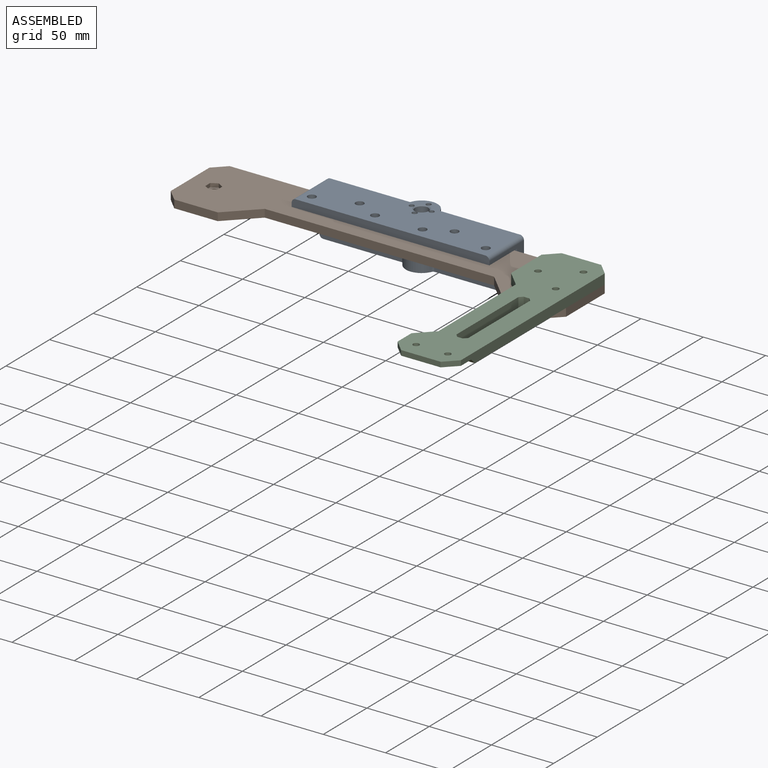
[diagram: assembled view]
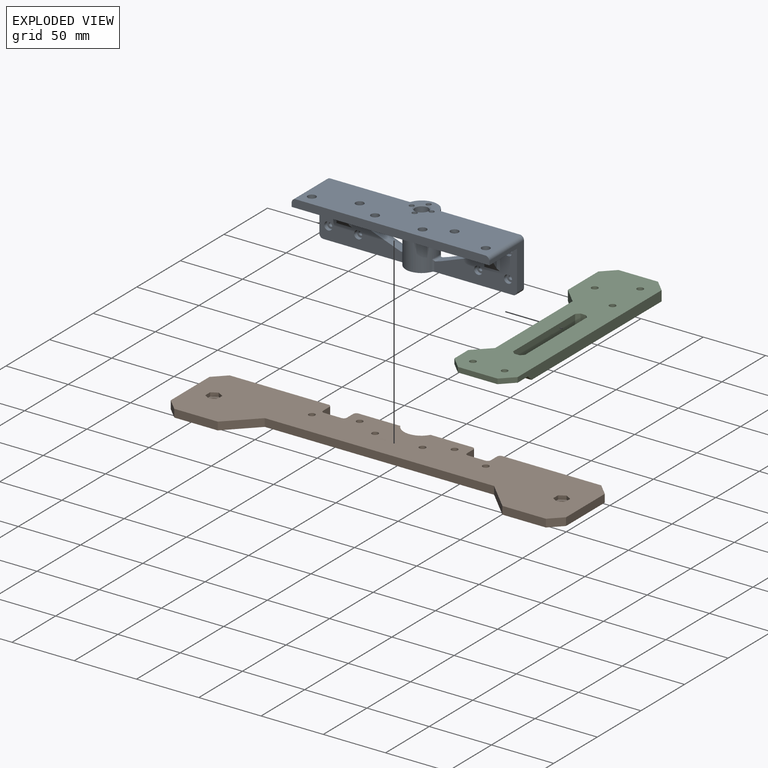
[diagram: exploded view]
GUIDED TOUR — MATED ASSEMBLY (Onshape document 57eddd5dabc414ae9077054c, AutoMate assembly 57eddd5dabc414ae9077054c_cc69fc8df70226107873c7df_3a437bafbf98601122c92799_default)

This assembly has 3 components, labeled P0..P2 below (a component is one placed occurrence of a part; the same part can appear more than once), held together by 5 mates. A mate is a constraint between two components; its type names the relative motion it leaves free:
  CYLINDRICAL — leaves both rotation about and translation along the listed axis free,
  PARALLEL — keeps the two listed directions parallel,
  PLANAR — leaves sliding in the plane through the listed point (normal = the listed direction) and rotation about that normal free.
Axis/direction vectors are unit vectors and 'through' points are millimeter coordinates, both in the assembly's world frame.

MATES
  1. PLANAR "Planar 1": P0 <-> P1, direction (0.000, 0.000, -1.000) through (2.60, -173.63, 19.54) mm
  2. CYLINDRICAL "Cylindrical 1": P1 <-> P0, axis (0.000, 0.000, -1.000) through (-69.01, -178.96, 13.19) mm
  3. PARALLEL "Parallel 1": P2 <-> P1, direction (1.000, 0.000, 0.000) through (159.59, -248.68, 23.69) mm
  4. PLANAR "Planar 2": P2 <-> P1, direction (0.000, 0.000, -1.000) through (121.49, -217.06, 19.54) mm
  5. CYLINDRICAL "Cylindrical 2": P2 <-> P1, axis (0.000, 0.000, -1.000) through (121.49, -191.66, 23.60) mm

ASSEMBLY ORDER
  1. P0 — the base component [order verified]
  2. P1 [order verified]
  3. P2 [order verified]
Order-tag legend:
  [order verified] — this step's position reverses a verified removal order: the component was checked to insert without passing through the ones already placed.

Of the 3 components, 1 carries the full construction recipe — the FeatureScript program that regenerates the part's solid from scratch; the rest are supplied as boundary geometry only.
Each toured component is shown spotlighted twice — in the assembled view, then in the exploded view, where a leader line traces a displaced component back to its assembled socket (saturated green if recipe-attached, orange if geometry-only; every other component desaturated gray) — followed by its recipe or geometry summary and the mates that hold it.
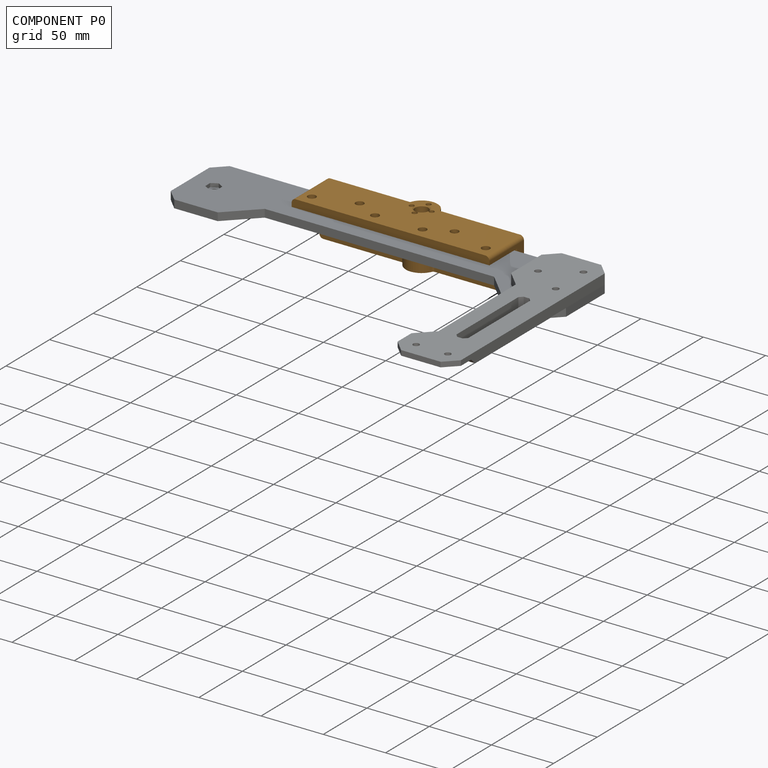
[diagram: component P0 — assembled]
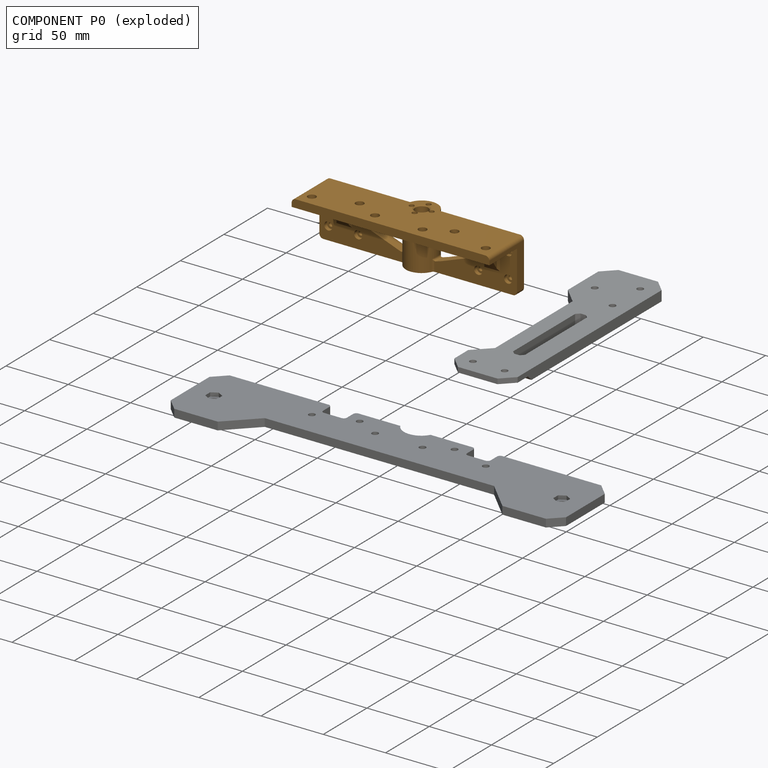
[diagram: component P0 — exploded]
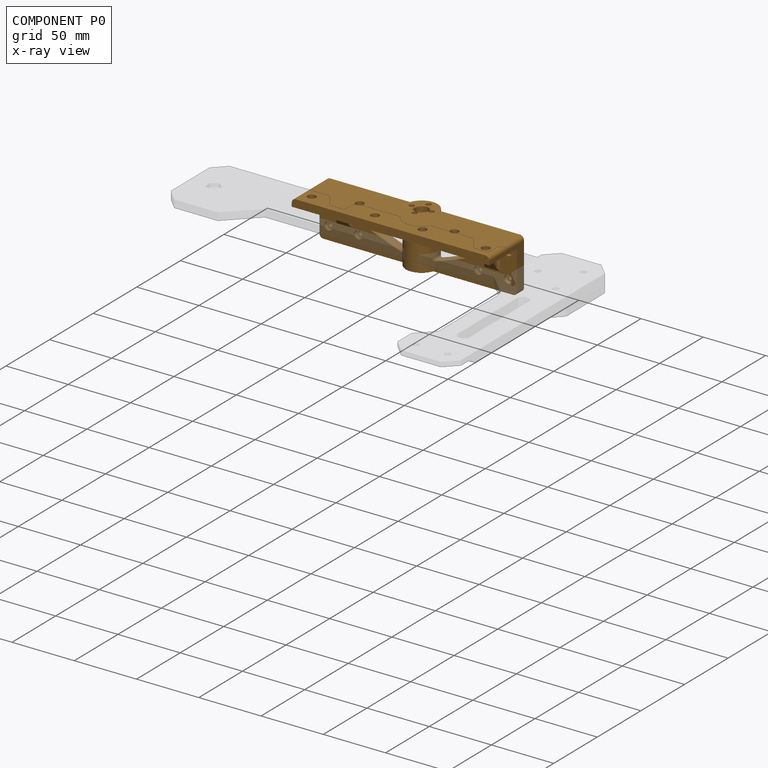
[diagram: component P0 — x-ray view]
COMPONENT P0 — geometry summary (no construction recipe available for this part):
  bounding box: 158.8 x 48.5 x 41.0 mm
  B-rep topology: 1 solid, 103 faces, 580 edges
  volume: 82687 mm^3 (26% of its bounding box)
  symmetry: mirror-symmetric across its x mid-plane
Held by: PLANAR mate "Planar 1" to P1; CYLINDRICAL mate "Cylindrical 1" to P1.
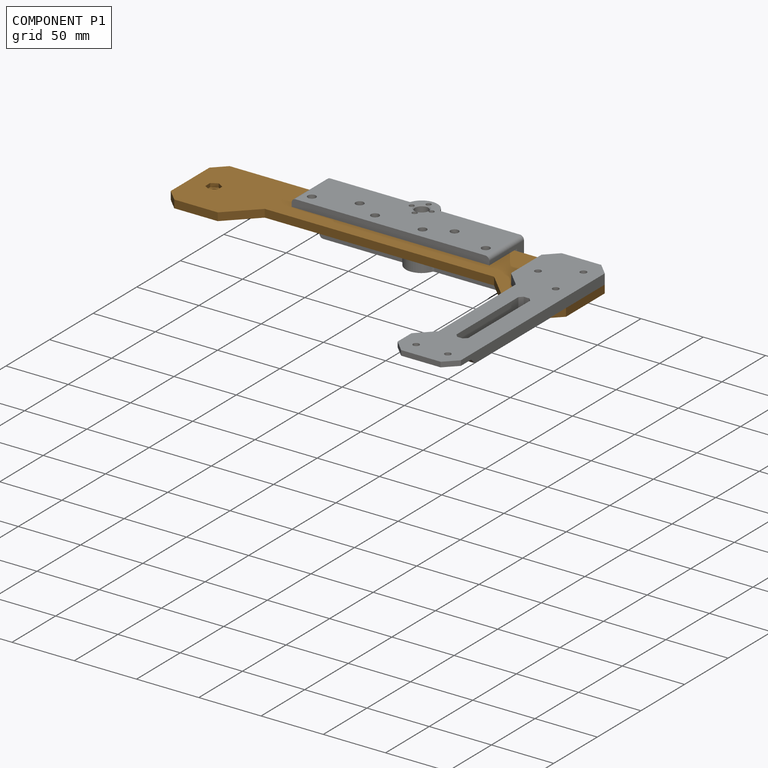
[diagram: component P1 — assembled]
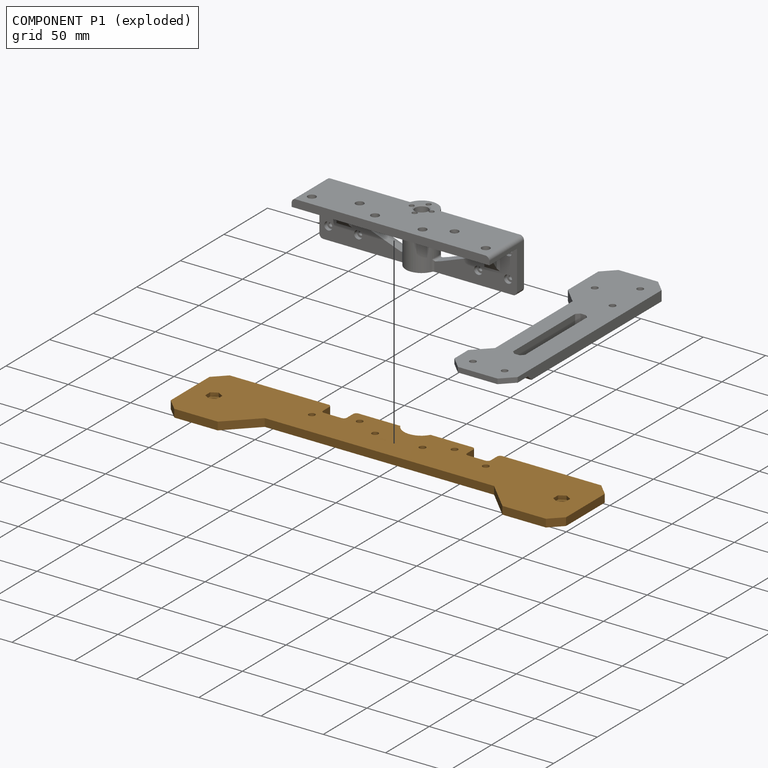
[diagram: component P1 — exploded]
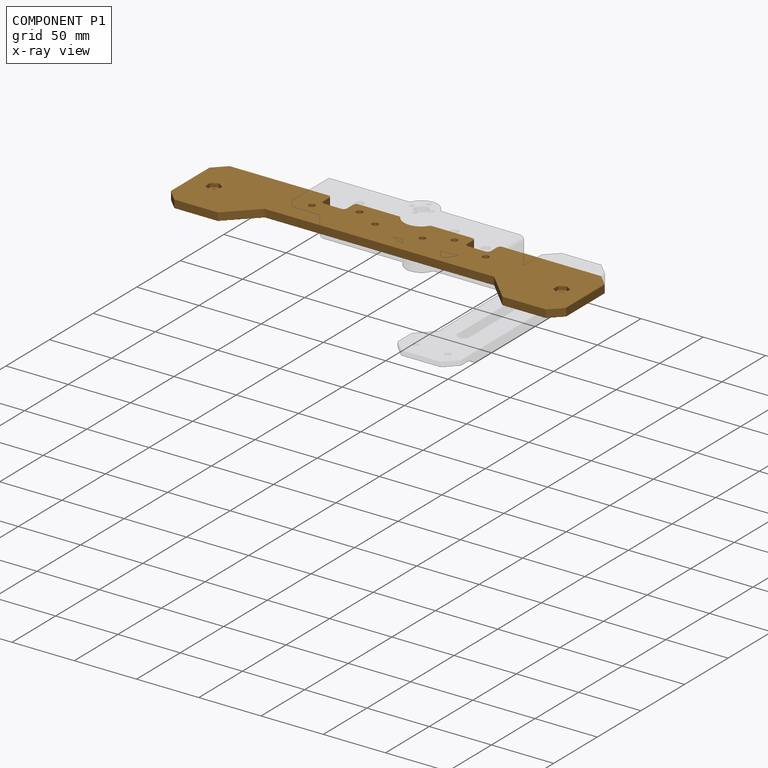
[diagram: component P1 — x-ray view]
COMPONENT P1 — geometry summary (no construction recipe available for this part):
  bounding box: 317.5 x 63.5 x 12.7 mm
  B-rep topology: 1 solid, 76 faces, 372 edges
  volume: 94123 mm^3 (37% of its bounding box)
  symmetry: mirror-symmetric across its x mid-plane
Held by: PLANAR mate "Planar 1" to P0; CYLINDRICAL mate "Cylindrical 1" to P0; PARALLEL mate "Parallel 1" to P2; PLANAR mate "Planar 2" to P2; CYLINDRICAL mate "Cylindrical 2" to P2.
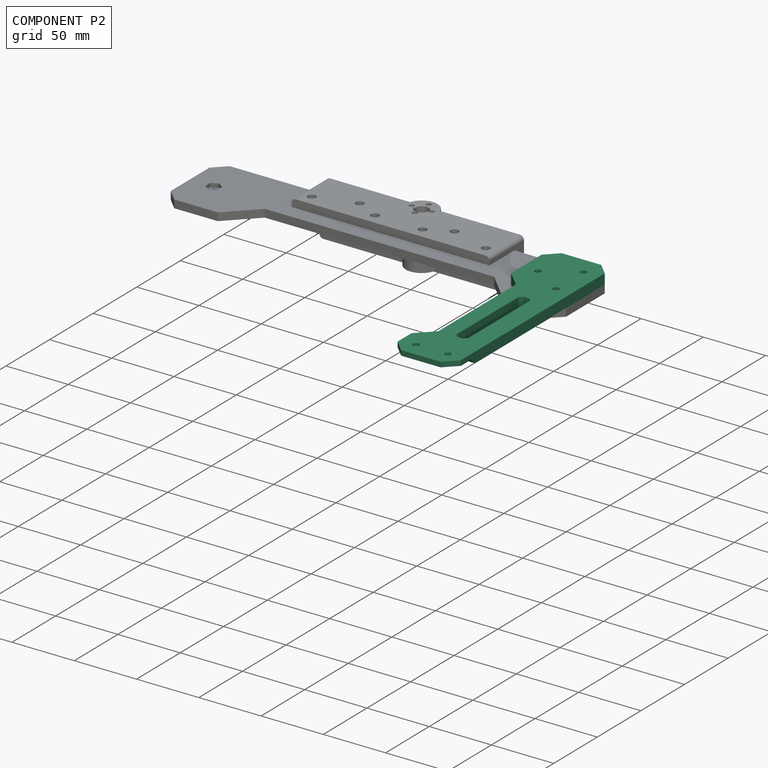
[diagram: component P2 — assembled]
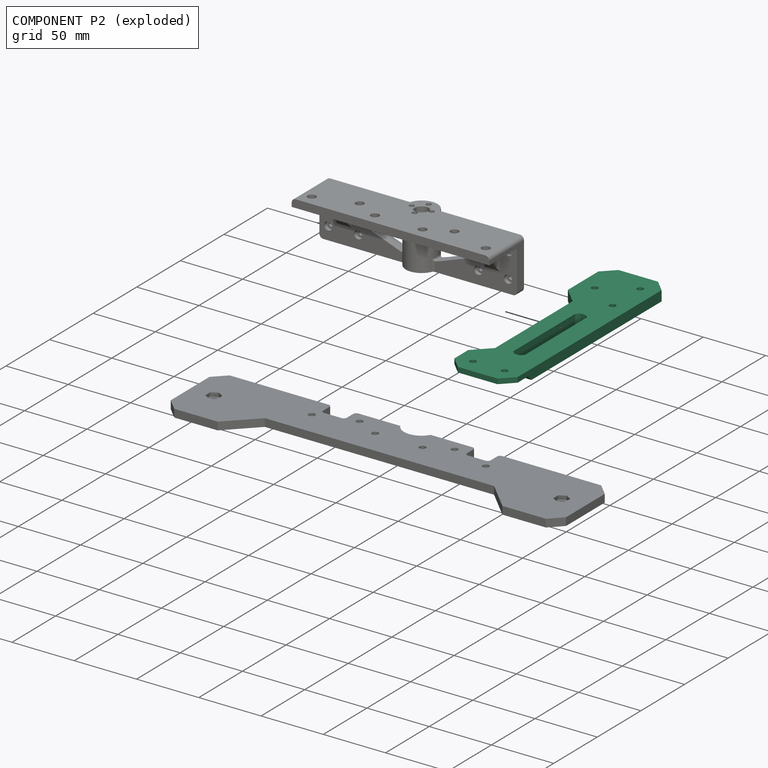
[diagram: component P2 — exploded]
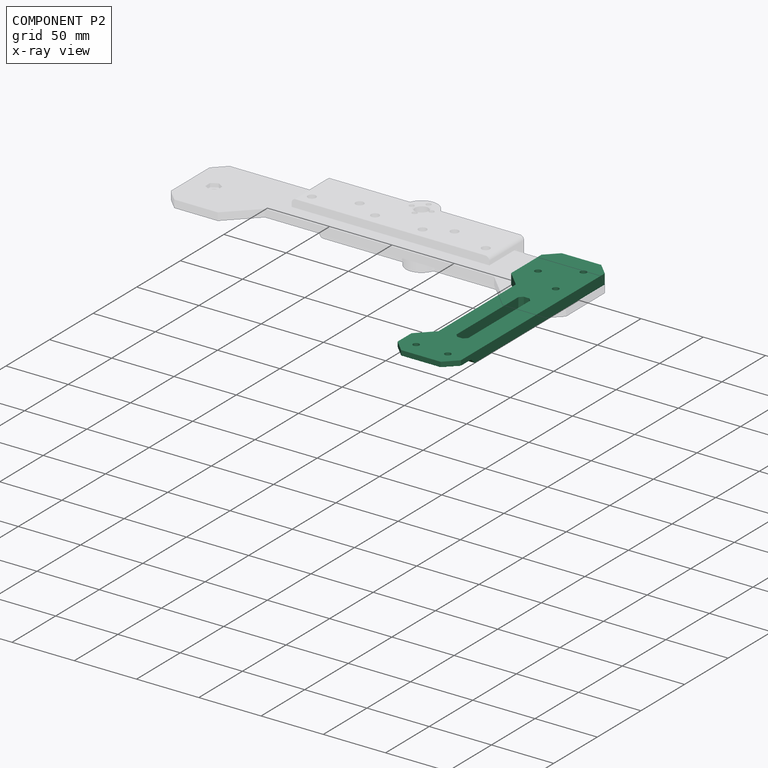
[diagram: component P2 — x-ray view]
COMPONENT P2 — recipe-attached (CADFS 00773303, mesh-verified: the recipe's output STEP matches this component's geometry to below the mesh-comparison resolution (tessellation chordal tolerance ~0.287 mm)).
Held by: PARALLEL mate "Parallel 1" to P1; PLANAR mate "Planar 2" to P1; CYLINDRICAL mate "Cylindrical 2" to P1.
Construction recipe (FeatureScript — the CAD program that rebuilds this solid; sketch coordinates are in the units given by the * unit suffixes, e.g. mm):

FeatureScript 1511;
import(path : "onshape/std/geometry.fs", version : "1511.0");
import(path : "onshape/std/common.fs", version : "1511.0");
const mm = millimeter;
const VERTEX = EntityType.VERTEX;
const EDGE = EntityType.EDGE;
const FACE = EntityType.FACE;
const BODY = EntityType.BODY;
function v(x, y){return vector(x, y);}
function OD(order){return orderDisambiguation(order);}
function OSD(set){return originalSetDisambiguation(set);}
function TD(topology){return topologyDisambiguation(topology);}
function TDD(query){return trueDependencyDisambiguation(query);}
function sQuery(a, b, c) {return sketchEntityQuery(a, b, c);}

annotation { "Feature Type Name" : "Feature", "Feature Type Description" : "" }
export const myFeature = defineFeature(function(context is Context, id is Id, definition is map)
    precondition{}
    {
        {
            var Q0;
            Q0=qCreatedBy(makeId("Top.planeOp"),FACE);
            var sketch = newSketch(context, id + "F0", { "sketchPlane" : qUnion([Q0])});
            skLineSegment(sketch, "E0.bottom", {"start": v(-92.08, 25.4) * mm, "end": v(92.08, 25.4) * mm});
            skLineSegment(sketch, "E0.top", {"start": v(-92.08, -25.4) * mm, "end": v(92.08, -25.4) * mm});
            skLineSegment(sketch, "E0.left", {"start": v(-92.08, 25.4) * mm, "end": v(-92.08, -25.4) * mm});
            skLineSegment(sketch, "E0.right", {"start": v(92.08, 25.4) * mm, "end": v(92.08, -25.4) * mm});
            skPoint(sketch, "E0.middle", {"position": v(0, 0) * mm});
            skSolve(sketch);
        }
        {
            var Q0;
            Q0=makeQuery(id+"F0.imprint","IMPRINT",FACE,{"disambiguationData":[TD([[makeQuery(id+"F0.imprint","IMPRINT",EDGE,{"derivedFrom":sQuery(id+"F0.wireOp",EDGE,"E0.bottom")}),-1.0]])]});
            extrude(context, id + "F1", {"entities" : qUnion([Q0]), "depth" : 8.13 * mm, "offsetDistance" : 25.4 * mm});
        }
        {
            var Q0;
            Q0=makeQuery(id+"F1.opExtrude","CAP_FACE",FACE,{"disambiguationData":[OSD([sQuery(id+"F0.wireOp",EDGE,"E0.bottom"),sQuery(id+"F0.wireOp",EDGE,"E0.top"),sQuery(id+"F0.wireOp",EDGE,"E0.left"),sQuery(id+"F0.wireOp",EDGE,"E0.right")])],"isStart":false});
            var sketch = newSketch(context, id + "F2", { "sketchPlane" : qUnion([Q0])});
            skPoint(sketch, "E1", {"position": v(-76.2, -12.7) * mm});
            skPoint(sketch, "E2", {"position": v(-44.45, -12.7) * mm});
            skPoint(sketch, "E3", {"position": v(-60.33, 12.7) * mm});
            skSolve(sketch);
        }
        {
            var Q0;
            Q0=sQuery(id+"F2.wireOp",VERTEX,"E3");
            var Q1;
            Q1=sQuery(id+"F2.wireOp",VERTEX,"E1");
            var Q2;
            Q2=sQuery(id+"F2.wireOp",VERTEX,"E2");
            var Q3;
            Q3=makeQuery(id+"F1.opExtrude","SWEPT_BODY",BODY,{"disambiguationData":[OSD([sQuery(id+"F0.wireOp",EDGE,"E0.bottom"),sQuery(id+"F0.wireOp",EDGE,"E0.top"),sQuery(id+"F0.wireOp",EDGE,"E0.left"),sQuery(id+"F0.wireOp",EDGE,"E0.right")])]});
            hole(context, id + "F3", {"style" : HoleStyle.SIMPLE, "endStyle" : HoleEndStyle.THROUGH, "standardTappedOrClearance" : lookupTablePath({ "standard" : "ANSI", "fit" : "Normal (ASME)", "size" : "#10", "type" : "Clearance" }), "standardBlindInLast" : lookupTablePath({ "fit" : "Free", "standard" : "ANSI", "size" : "#10", "type" : "Clearance" }), "holeDiameter" : 5.1 * mm, "majorDiameter" : 6.35 * mm, "isTappedThrough" : true, "tappedDepth" : 12.7 * mm, "tapClearance" : 3, "locations" : qUnion([Q0, Q1, Q2]), "scope" : qUnion([Q3])});
        }
        {
            var Q0;
            Q0=qCreatedBy(makeId("Right.planeOp"),FACE);
            cPlane(context, id + "F4", {"entities" : qUnion([Q0]), "cplaneType" : CPlaneType.OFFSET, "offset" : 60.32 * mm, "oppositeDirection" : true, "width" : 152.4 * mm, "height" : 152.4 * mm});
        }
        {
            var Q0;
            Q0=makeQuery(id+"F1.opExtrude","CAP_FACE",FACE,{"disambiguationData":[OSD([sQuery(id+"F0.wireOp",EDGE,"E0.bottom"),sQuery(id+"F0.wireOp",EDGE,"E0.top"),sQuery(id+"F0.wireOp",EDGE,"E0.left"),sQuery(id+"F0.wireOp",EDGE,"E0.right")])],"isStart":false});
            var sketch = newSketch(context, id + "F5", { "sketchPlane" : qUnion([Q0])});
            skPoint(sketch, "E4", {"position": v(79.38, 12.7) * mm});
            skPoint(sketch, "E5", {"position": v(79.38, -12.7) * mm});
            skSolve(sketch);
        }
        {
            var Q0;
            Q0=sQuery(id+"F5.wireOp",VERTEX,"E4");
            var Q1;
            Q1=sQuery(id+"F5.wireOp",VERTEX,"E5");
            var Q2;
            Q2=makeQuery(id+"F1.opExtrude","SWEPT_BODY",BODY,{"disambiguationData":[OSD([sQuery(id+"F0.wireOp",EDGE,"E0.bottom"),sQuery(id+"F0.wireOp",EDGE,"E0.top"),sQuery(id+"F0.wireOp",EDGE,"E0.left"),sQuery(id+"F0.wireOp",EDGE,"E0.right")])]});
            hole(context, id + "F6", {"style" : HoleStyle.SIMPLE, "endStyle" : HoleEndStyle.THROUGH, "standardTappedOrClearance" : lookupTablePath({ "standard" : "ANSI", "fit" : "Close", "size" : "#10", "type" : "Clearance" }), "standardBlindInLast" : lookupTablePath({ "fit" : "Close", "standard" : "ANSI", "size" : "#10", "type" : "Clearance" }), "holeDiameter" : 4.98 * mm, "majorDiameter" : 6.35 * mm, "isTappedThrough" : true, "tappedDepth" : 12.7 * mm, "tapClearance" : 3, "locations" : qUnion([Q0, Q1]), "scope" : qUnion([Q2])});
        }
        {
            var Q0;
            Q0=makeQuery(id+"F1.opExtrude","CAP_FACE",FACE,{"disambiguationData":[OSD([sQuery(id+"F0.wireOp",EDGE,"E0.bottom"),sQuery(id+"F0.wireOp",EDGE,"E0.top"),sQuery(id+"F0.wireOp",EDGE,"E0.left"),sQuery(id+"F0.wireOp",EDGE,"E0.right")])],"isStart":false});
            var sketch = newSketch(context, id + "F7", { "sketchPlane" : qUnion([Q0])});
            skLineSegment(sketch, "E6", {"start": v(-47.63, 25.4) * mm, "end": v(-34.92, 12.7) * mm});
            skLineSegment(sketch, "E7", {"start": v(-34.92, 12.7) * mm, "end": v(53.98, 12.7) * mm});
            skLineSegment(sketch, "E8", {"start": v(53.98, 12.7) * mm, "end": v(66.67, 25.4) * mm});
            skLineSegment(sketch, "E9", {"start": v(66.67, 25.4) * mm, "end": v(-47.63, 25.4) * mm});
            skLineSegment(sketch, "E10.bottom", {"start": v(-22.23, 0) * mm, "end": v(53.98, 0) * mm});
            skLineSegment(sketch, "E10.top", {"start": v(-22.23, -9.53) * mm, "end": v(53.98, -9.53) * mm});
            skLineSegment(sketch, "E10.left", {"start": v(-22.23, 0) * mm, "end": v(-22.23, -9.53) * mm});
            skLineSegment(sketch, "E10.right", {"start": v(53.98, 0) * mm, "end": v(53.98, -9.53) * mm});
            skPoint(sketch, "E10.middle", {"position": v(15.88, -4.76) * mm});
            skSolve(sketch);
        }
        {
            var Q0;
            Q0=makeQuery(id+"F7.imprint","IMPRINT",FACE,{"disambiguationData":[TD([[makeQuery(id+"F7.imprint","IMPRINT",EDGE,{"derivedFrom":sQuery(id+"F7.wireOp",EDGE,"E6")}),1.0]])]});
            var Q1;
            Q1=makeQuery(id+"F7.imprint","IMPRINT",FACE,{"disambiguationData":[TD([[makeQuery(id+"F7.imprint","IMPRINT",EDGE,{"derivedFrom":sQuery(id+"F7.wireOp",EDGE,"E10.bottom")}),-1.0]])]});
            extrude(context, id + "F8", {"entities" : qUnion([Q0, Q1]), "operationType" : NewBodyOperationType.REMOVE, "endBound" : BoundingType.THROUGH_ALL, "oppositeDirection" : true, "depth" : 25.4 * mm, "offsetDistance" : 25.4 * mm});
        }
        {
            var Q0;
            Q0=makeQuery(id+"F1.opExtrude","SWEPT_EDGE",EDGE,{"disambiguationData":[OSD([sQuery(id+"F0.wireOp",EDGE,"E0.top"),sQuery(id+"F0.wireOp",EDGE,"E0.left")])]});
            var Q1;
            Q1=makeQuery(id+"F1.opExtrude","SWEPT_EDGE",EDGE,{"disambiguationData":[OSD([sQuery(id+"F0.wireOp",EDGE,"E0.bottom"),sQuery(id+"F0.wireOp",EDGE,"E0.left")])]});
            var Q2;
            Q2=makeQuery(id+"F1.opExtrude","SWEPT_EDGE",EDGE,{"disambiguationData":[OSD([sQuery(id+"F0.wireOp",EDGE,"E0.top"),sQuery(id+"F0.wireOp",EDGE,"E0.right")])]});
            var Q3;
            Q3=makeQuery(id+"F1.opExtrude","SWEPT_EDGE",EDGE,{"disambiguationData":[OSD([sQuery(id+"F0.wireOp",EDGE,"E0.bottom"),sQuery(id+"F0.wireOp",EDGE,"E0.right")])]});
            chamfer(context, id + "F9", {"entities" : qUnion([Q0, Q1, Q2, Q3]), "width" : 9.52 * mm, "tangentPropagation" : true});
        }
        {
            var Q0;
            Q0=makeQuery(id+"F8.boolean.opBoolean","COPY",EDGE,{"derivedFrom":makeQuery(id+"F8.opExtrude","SWEPT_EDGE",EDGE,{"disambiguationData":[OSD([sQuery(id+"F7.wireOp",EDGE,"E10.bottom"),sQuery(id+"F7.wireOp",EDGE,"E10.left")])]})});
            var Q1;
            Q1=makeQuery(id+"F8.boolean.opBoolean","COPY",EDGE,{"derivedFrom":makeQuery(id+"F8.opExtrude","SWEPT_EDGE",EDGE,{"disambiguationData":[OSD([sQuery(id+"F7.wireOp",EDGE,"E10.top"),sQuery(id+"F7.wireOp",EDGE,"E10.left")])]})});
            var Q2;
            Q2=makeQuery(id+"F8.boolean.opBoolean","COPY",EDGE,{"derivedFrom":makeQuery(id+"F8.opExtrude","SWEPT_EDGE",EDGE,{"disambiguationData":[OSD([sQuery(id+"F7.wireOp",EDGE,"E10.bottom"),sQuery(id+"F7.wireOp",EDGE,"E10.right")])]})});
            var Q3;
            Q3=makeQuery(id+"F8.boolean.opBoolean","COPY",EDGE,{"derivedFrom":makeQuery(id+"F8.opExtrude","SWEPT_EDGE",EDGE,{"disambiguationData":[OSD([sQuery(id+"F7.wireOp",EDGE,"E10.top"),sQuery(id+"F7.wireOp",EDGE,"E10.right")])]})});
            chamfer(context, id + "F10", {"entities" : qUnion([Q0, Q1, Q2, Q3]), "width" : 2.54 * mm, "tangentPropagation" : true});
        }
        {
            var Q0;
            Q0=makeQuery(id+"F1.opExtrude","CAP_FACE",FACE,{"disambiguationData":[OSD([sQuery(id+"F0.wireOp",EDGE,"E0.bottom"),sQuery(id+"F0.wireOp",EDGE,"E0.top"),sQuery(id+"F0.wireOp",EDGE,"E0.left"),sQuery(id+"F0.wireOp",EDGE,"E0.right")])],"isStart":false});
            var sketch = newSketch(context, id + "F11", { "sketchPlane" : qUnion([Q0])});
            skLineSegment(sketch, "E11", {"start": v(66.67, 25.4) * mm, "end": v(66.67, -25.4) * mm});
            skLineSegment(sketch, "E12", {"start": v(66.67, -25.4) * mm, "end": v(82.55, -25.4) * mm});
            skLineSegment(sketch, "E13", {"start": v(82.55, -25.4) * mm, "end": v(92.08, -15.88) * mm});
            skLineSegment(sketch, "E14", {"start": v(92.08, -15.88) * mm, "end": v(92.08, 15.88) * mm});
            skLineSegment(sketch, "E15", {"start": v(92.08, 15.88) * mm, "end": v(82.55, 25.4) * mm});
            skLineSegment(sketch, "E16", {"start": v(82.55, 25.4) * mm, "end": v(66.67, 25.4) * mm});
            skSolve(sketch);
        }
        {
            var Q0;
            Q0=makeQuery(id+"F11.imprint","IMPRINT",FACE,{"disambiguationData":[TD([[makeQuery(id+"F11.imprint","IMPRINT",EDGE,{"derivedFrom":sQuery(id+"F11.wireOp",EDGE,"E11")}),1.0]])]});
            extrude(context, id + "F12", {"entities" : qUnion([Q0]), "operationType" : NewBodyOperationType.REMOVE, "oppositeDirection" : true, "depth" : 4.06 * mm, "offsetDistance" : 25.4 * mm});
        }
        {
            var Q0;
            Q0=makeQuery(id+"F12.boolean.opBoolean","COPY",EDGE,{"derivedFrom":makeQuery(id+"F12.opExtrude","CAP_EDGE",EDGE,{"disambiguationData":[OSD([sQuery(id+"F11.wireOp",EDGE,"E11")])],"isStart":false})});
            chamfer(context, id + "F13", {"entities" : qUnion([Q0]), "width" : 4.06 * mm, "tangentPropagation" : true});
        }
        {
            var Q0;
            Q0=makeQuery(id+"F1.opExtrude","SWEPT_FACE",FACE,{"disambiguationData":[OSD([sQuery(id+"F0.wireOp",EDGE,"E0.right")])]});
            cPlane(context, id + "F14", {"entities" : qUnion([Q0]), "cplaneType" : CPlaneType.OFFSET, "offset" : 0 * mm, "width" : 152.4 * mm, "height" : 152.4 * mm});
        }
    });
PROVENANCE & LICENSES
Assembly (occurrences, transforms, mates, per-part STEP geometry): AutoMate dataset, Zenodo record 7776208, CC0.
Construction recipes: CADFS (HuggingFace VladPyatov/CADFS, CC-BY-4.0, layered over the ABC dataset), FeatureScript reconstruction programs keyed by ABC model id.
Join: ABC meta listings map ABC model id -> Onshape documentId; within a shared document, parts are matched by geometric signature (bounding-box dims + volume at 0.1% relative tolerance, exact B-rep face/solid counts).
Verification: 1 of this assembly's 3 components carries a recipe attachment, and every attachment is mesh-verified: the CADFS STEP and the AutoMate member STEP were compared as meshes in their shared local frame (symmetric sampled-point-to-mesh distance); worst across the 1 attachment: below the mesh-comparison resolution (tessellation chordal tolerance ~0.287 mm) on a 191 mm part.
Renders: orthographic iso camera (az 35 / el 25); the floor grid conveys scale (grid pitch printed in each image; no ruler). In the exploded view each component is displaced by its stored offset vector: the offsets alone carry the explosion direction (mate normal/axis signs are not orientation cues and do not encode it), and separation distances are assigned per mate-chain, not proportionally to assembly-order depth.
